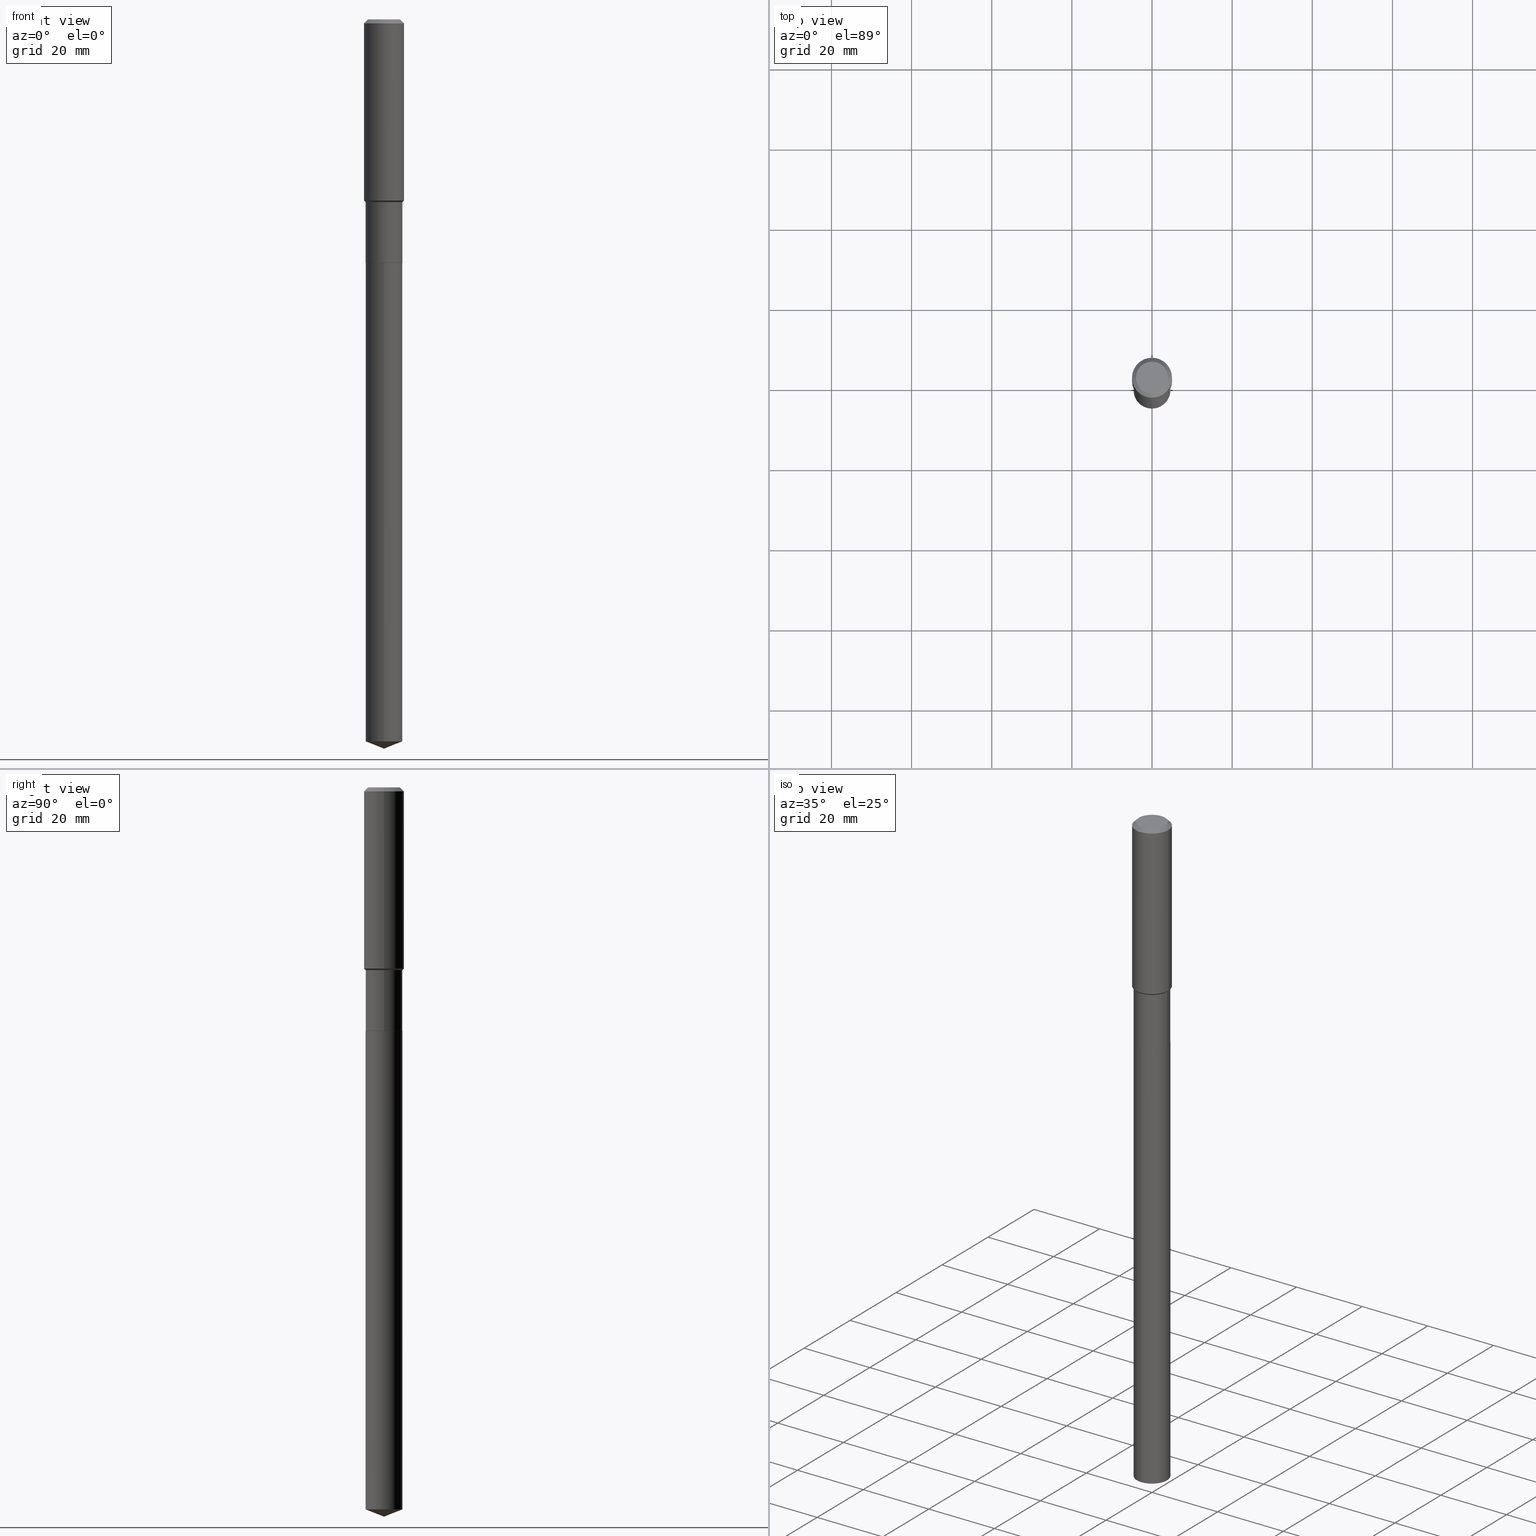
[diagram: canonical four-view strip — front | top / right | iso, engineering-drawing reading convention]
A machine part, canonical four-view strip (front | top / right | iso — engineering-drawing reading convention). The complete STEP part file that produces these views, byte-faithful:
ISO-10303-21;
HEADER;
FILE_DESCRIPTION (( 'STEP AP203' ),
    '1' );
FILE_NAME ('66771.STEP',
    '2024-04-25T05:48:46',
    ( '' ),
    ( '' ),
    'SwSTEP 2.0',
    'SolidWorks 2023',
    '' );
FILE_SCHEMA (( 'CONFIG_CONTROL_DESIGN' ));
ENDSEC;

DATA;
#1 = AXIS2_PLACEMENT_3D ( 'NONE', #376, #455, #132 ) ;
#2 = VECTOR ( 'NONE', #142, 39.37007874015748143 ) ;
#3 = CARTESIAN_POINT ( 'NONE',  ( 5.852740493842886535E-29, -8.356162288253299515E-15, -2.393299999999999983 ) ) ;
#4 = AXIS2_PLACEMENT_3D ( 'NONE', #304, #348, #382 ) ;
#5 = APPROVAL ( #57, 'UNSPECIFIED' ) ;
#6 = FACE_OUTER_BOUND ( 'NONE', #138, .T. ) ;
#7 = EDGE_CURVE ( 'NONE', #214, #440, #206, .T. ) ;
#8 = AXIS2_PLACEMENT_3D ( 'NONE', #488, #64, #107 ) ;
#9 = DIRECTION ( 'NONE',  ( 0.7071067811865452413, -7.319954787623248157E-15, -0.7071067811865497932 ) ) ;
#10 = CARTESIAN_POINT ( 'NONE',  ( 0.000000000000000000, 0.000000000000000000, 0.000000000000000000 ) ) ;
#11 = DIRECTION ( 'NONE',  ( -2.445468806185136597E-29, 3.491481338843145583E-15, 1.000000000000000000 ) ) ;
#12 = FACE_OUTER_BOUND ( 'NONE', #354, .T. ) ;
#13 = DIRECTION ( 'NONE',  ( 1.000000000000000000, -6.982962677686263555E-15, 0.000000000000000000 ) ) ;
#14 = APPLICATION_PROTOCOL_DEFINITION ( 'international standard', 'config_control_design', 1994, #91 ) ;
#15 = ORIENTED_EDGE ( 'NONE', *, *, #28, .F. ) ;
#16 = DIRECTION ( 'NONE',  ( -2.445468806185136597E-29, 3.491481338843145583E-15, 1.000000000000000000 ) ) ;
#17 = FACE_OUTER_BOUND ( 'NONE', #364, .T. ) ;
#18 = EDGE_CURVE ( 'NONE', #362, #395, #146, .T. ) ;
#19 = PERSON_AND_ORGANIZATION ( #124, #361 ) ;
#20 = CIRCLE ( 'NONE', #61, 0.1810999999999999555 ) ;
#21 = DIMENSIONAL_EXPONENTS ( 1.000000000000000000, 0.000000000000000000, 0.000000000000000000, 0.000000000000000000, 0.000000000000000000, 0.000000000000000000, 0.000000000000000000 ) ;
#22 = DIRECTION ( 'NONE',  ( -2.445468806185136597E-29, 3.491481338843145583E-15, 1.000000000000000000 ) ) ;
#23 = EDGE_CURVE ( 'NONE', #109, #310, #153, .T. ) ;
#24 = EDGE_LOOP ( 'NONE', ( #36, #221, #144, #326 ) ) ;
#25 = DIRECTION ( 'NONE',  ( -2.445468806185136877E-29, 3.491481338843145188E-15, 1.000000000000000000 ) ) ;
#26 = ORIENTED_EDGE ( 'NONE', *, *, #431, .F. ) ;
#27 = DIRECTION ( 'NONE',  ( -6.982962677686266711E-15, -1.000000000000000000, 3.016949744521549444E-15 ) ) ;
#28 = EDGE_CURVE ( 'NONE', #186, #215, #75, .T. ) ;
#29 = ORIENTED_EDGE ( 'NONE', *, *, #353, .T. ) ;
#30 = EDGE_LOOP ( 'NONE', ( #302, #71, #473, #15 ) ) ;
#31 = CONICAL_SURFACE ( 'NONE', #300, 0.1806000000000000105, 0.7853981633975507526 ) ;
#32 = CARTESIAN_POINT ( 'NONE',  ( 9.627810689950948900E-31, -1.374596203102555561E-16, -0.03937000000000026589 ) ) ;
#33 = DIRECTION ( 'NONE',  ( -2.445468806185136597E-29, 3.491481338843145583E-15, 1.000000000000000000 ) ) ;
#34 = EDGE_LOOP ( 'NONE', ( #340, #72, #121, #220 ) ) ;
#35 = CARTESIAN_POINT ( 'NONE',  ( 4.352812201569232607E-29, -6.214662209073854707E-15, -1.779949999999999477 ) ) ;
#36 = ORIENTED_EDGE ( 'NONE', *, *, #76, .F. ) ;
#37 = DIRECTION ( 'NONE',  ( 1.000000000000000000, -6.982962677686268288E-15, 0.000000000000000000 ) ) ;
#38 = ORIENTED_EDGE ( 'NONE', *, *, #328, .F. ) ;
#39 = CC_DESIGN_DATE_AND_TIME_ASSIGNMENT ( #232, #55, ( #210 ) ) ;
#40 = APPROVAL_PERSON_ORGANIZATION ( #203, #258, #309 ) ;
#41 = VECTOR ( 'NONE', #359, 39.37007874015748854 ) ;
#42 = CARTESIAN_POINT ( 'NONE',  ( -0.1806000000000000105, -7.070272880296448290E-15, -2.393299999999999983 ) ) ;
#43 = EDGE_CURVE ( 'NONE', #189, #215, #411, .T. ) ;
#44 = FACE_OUTER_BOUND ( 'NONE', #252, .T. ) ;
#45 =( LENGTH_UNIT ( ) NAMED_UNIT ( * ) SI_UNIT ( $, .METRE. ) );
#46 = AXIS2_PLACEMENT_3D ( 'NONE', #190, #409, #332 ) ;
#47 = CYLINDRICAL_SURFACE ( 'NONE', #119, 0.1968500000000001082 ) ;
#48 = LINE ( 'NONE', #337, #51 ) ;
#49 = CARTESIAN_POINT ( 'NONE',  ( 1.752172379876765802E-28, -2.501655154778385733E-14, -7.165000000000000036 ) ) ;
#50 = CC_DESIGN_DATE_AND_TIME_ASSIGNMENT ( #211, #54, ( #261 ) ) ;
#51 = VECTOR ( 'NONE', #9, 39.37007874015748143 ) ;
#52 = CLOSED_SHELL ( 'NONE', ( #377, #303, #331, #305, #218, #116, #93, #470, #122, #169, #335, #380 ) ) ;
#53 = AXIS2_PLACEMENT_3D ( 'NONE', #157, #327, #253 ) ;
#54 = DATE_TIME_ROLE ( 'classification_date' ) ;
#55 = DATE_TIME_ROLE ( 'creation_date' ) ;
#56 = EDGE_CURVE ( 'NONE', #100, #310, #325, .T. ) ;
#57 = APPROVAL_STATUS ( 'not_yet_approved' ) ;
#58 = FACE_OUTER_BOUND ( 'NONE', #228, .T. ) ;
#59 = ORIENTED_EDGE ( 'NONE', *, *, #118, .T. ) ;
#60 = FACE_OUTER_BOUND ( 'NONE', #66, .T. ) ;
#61 = AXIS2_PLACEMENT_3D ( 'NONE', #70, #251, #37 ) ;
#62 = COORDINATED_UNIVERSAL_TIME_OFFSET ( 5, 0, .BEHIND. ) ;
#63 = VECTOR ( 'NONE', #137, 39.37007874015748143 ) ;
#64 = DIRECTION ( 'NONE',  ( -2.445468806185136597E-29, 3.491481338843145583E-15, 1.000000000000000000 ) ) ;
#65 = CARTESIAN_POINT ( 'NONE',  ( 0.1810999999999999832, -1.264614540928982742E-15, 8.830756140966438813E-30 ) ) ;
#66 = EDGE_LOOP ( 'NONE', ( #400, #115, #38, #307 ) ) ;
#67 = PERSON_AND_ORGANIZATION_ROLE ( 'classification_officer' ) ;
#68 = FACE_OUTER_BOUND ( 'NONE', #30, .T. ) ;
#69 = CARTESIAN_POINT ( 'NONE',  ( 0.1810999999999999555, -7.534267581089617769E-15, -1.795699999999999630 ) ) ;
#70 = CARTESIAN_POINT ( 'NONE',  ( 4.391328335266648566E-29, -6.269653040160634830E-15, -1.795699999999999630 ) ) ;
#71 = ORIENTED_EDGE ( 'NONE', *, *, #187, .T. ) ;
#72 = ORIENTED_EDGE ( 'NONE', *, *, #237, .T. ) ;
#73 = APPROVAL_PERSON_ORGANIZATION ( #437, #5, #306 ) ;
#74 = CONICAL_SURFACE ( 'NONE', #147, 99.94676754584145328, 1.195550537616124620 ) ;
#75 = LINE ( 'NONE', #69, #2 ) ;
#76 = EDGE_CURVE ( 'NONE', #356, #355, #267, .T. ) ;
#77 = DIRECTION ( 'NONE',  ( 1.000000000000000000, -6.982962677686263555E-15, 0.000000000000000000 ) ) ;
#78 = EDGE_LOOP ( 'NONE', ( #393, #112, #129 ) ) ;
#79 = DIRECTION ( 'NONE',  ( -6.982962677686266711E-15, -1.000000000000000000, 3.016949744521549444E-15 ) ) ;
#80 = CLOSED_SHELL ( 'NONE', ( #270, #135, #414, #401, #90 ) ) ;
#81 = DIRECTION ( 'NONE',  ( -2.445468806185136877E-29, 3.491481338843145188E-15, 1.000000000000000000 ) ) ;
#82 = AXIS2_PLACEMENT_3D ( 'NONE', #128, #33, #448 ) ;
#83 =( CONVERSION_BASED_UNIT ( 'INCH', #453 ) LENGTH_UNIT ( ) NAMED_UNIT ( #21 ) );
#84 = DIRECTION ( 'NONE',  ( -2.445443041397914078E-29, 3.491518235484888646E-15, 1.000000000000000000 ) ) ;
#85 = CARTESIAN_POINT ( 'NONE',  ( 4.391328335266648566E-29, -6.269653040160634830E-15, -1.795699999999999630 ) ) ;
#86 = DIRECTION ( 'NONE',  ( -2.445468806185136597E-29, 3.491481338843145583E-15, 1.000000000000000000 ) ) ;
#87 = CIRCLE ( 'NONE', #230, 0.1968500000000000250 ) ;
#88 = EDGE_CURVE ( 'NONE', #432, #360, #386, .T. ) ;
#89 = CIRCLE ( 'NONE', #350, 0.1811000000000000110 ) ;
#90 = ADVANCED_FACE ( 'NONE', ( #477 ), #443, .F. ) ;
#91 = APPLICATION_CONTEXT ( 'configuration controlled 3d designs of mechanical parts and assemblies' ) ;
#92 = CARTESIAN_POINT ( 'NONE',  ( -0.1806000000000000105, -7.072922107470559491E-15, -2.393299999999999983 ) ) ;
#93 = ADVANCED_FACE ( 'NONE', ( #212 ), #445, .T. ) ;
#94 = DIRECTION ( 'NONE',  ( 1.000000000000000000, 0.000000000000000000, 0.000000000000000000 ) ) ;
#95 =( GEOMETRIC_REPRESENTATION_CONTEXT ( 3 ) GLOBAL_UNCERTAINTY_ASSIGNED_CONTEXT ( ( #174 ) ) GLOBAL_UNIT_ASSIGNED_CONTEXT ( ( #83, #472, #460 ) ) REPRESENTATION_CONTEXT ( 'NONE', 'WORKASPACE' ) );
#96 = EDGE_CURVE ( 'NONE', #310, #109, #334, .T. ) ;
#97 = PERSON_AND_ORGANIZATION ( #124, #361 ) ;
#98 = FACE_OUTER_BOUND ( 'NONE', #78, .T. ) ;
#99 = CARTESIAN_POINT ( 'NONE',  ( 5.852740493842886535E-29, -8.356162288253299515E-15, -2.393299999999999983 ) ) ;
#100 = VERTEX_POINT ( 'NONE', #430 ) ;
#101 = APPROVAL_DATE_TIME ( #281, #5 ) ;
#102 = DIRECTION ( 'NONE',  ( 2.445468806185136597E-29, -3.491481338843145583E-15, -1.000000000000000000 ) ) ;
#103 = ORIENTED_EDGE ( 'NONE', *, *, #18, .T. ) ;
#104 = DIRECTION ( 'NONE',  ( 0.7071067811866199593, -2.468850131083015945E-15, 0.7071067811864750752 ) ) ;
#105 = DIRECTION ( 'NONE',  ( 1.000000000000000000, -6.982962677686265922E-15, 4.876176775795935793E-29 ) ) ;
#106 = PERSON_AND_ORGANIZATION_ROLE ( 'creator' ) ;
#107 = DIRECTION ( 'NONE',  ( 1.000000000000000000, -6.982962677686265922E-15, 4.876223630392693006E-29 ) ) ;
#108 = AXIS2_PLACEMENT_3D ( 'NONE', #85, #231, #257 ) ;
#109 = VERTEX_POINT ( 'NONE', #320 ) ;
#110 = AXIS2_PLACEMENT_3D ( 'NONE', #427, #102, #239 ) ;
#111 = PERSON_AND_ORGANIZATION ( #124, #361 ) ;
#112 = ORIENTED_EDGE ( 'NONE', *, *, #56, .T. ) ;
#113 = DIRECTION ( 'NONE',  ( -2.445443041397914078E-29, 3.491518235484888646E-15, 1.000000000000000000 ) ) ;
#114 = DIRECTION ( 'NONE',  ( -2.445443041397914078E-29, 3.491518235484888646E-15, 1.000000000000000000 ) ) ;
#115 = ORIENTED_EDGE ( 'NONE', *, *, #262, .T. ) ;
#116 = ADVANCED_FACE ( 'NONE', ( #151 ), #249, .T. ) ;
#117 = DIRECTION ( 'NONE',  ( 2.445468806185136597E-29, -3.491481338843145583E-15, -1.000000000000000000 ) ) ;
#118 = EDGE_CURVE ( 'NONE', #145, #217, #311, .T. ) ;
#119 = AXIS2_PLACEMENT_3D ( 'NONE', #457, #11, #133 ) ;
#120 = AXIS2_PLACEMENT_3D ( 'NONE', #254, #407, #77 ) ;
#121 = ORIENTED_EDGE ( 'NONE', *, *, #394, .F. ) ;
#122 = ADVANCED_FACE ( 'NONE', ( #438 ), #160, .T. ) ;
#123 = ORIENTED_EDGE ( 'NONE', *, *, #328, .T. ) ;
#124 = PERSON ( 'UNSPECIFIED', 'UNSPECIFIED', 'UNSPECIFIED', ('UNSPECIFIED'), ('UNSPECIFIED'), ('UNSPECIFIED') ) ;
#125 = CARTESIAN_POINT ( 'NONE',  ( -0.1810999999999999555, -4.982860145699094696E-15, -1.795699999999999630 ) ) ;
#126 = CARTESIAN_POINT ( 'NONE',  ( -1.264614540928809784E-15, -0.1811000000000247967, -7.093662812866134537 ) ) ;
#127 = FACE_OUTER_BOUND ( 'NONE', #34, .T. ) ;
#128 = CARTESIAN_POINT ( 'NONE',  ( 4.391328335266648566E-29, -6.269653040160634830E-15, -1.795699999999999630 ) ) ;
#129 = ORIENTED_EDGE ( 'NONE', *, *, #23, .F. ) ;
#130 = AXIS2_PLACEMENT_3D ( 'NONE', #161, #381, #94 ) ;
#131 = VECTOR ( 'NONE', #487, 39.37007874015748143 ) ;
#132 = DIRECTION ( 'NONE',  ( 1.000000000000000000, -6.982962677686265922E-15, 0.000000000000000000 ) ) ;
#133 = DIRECTION ( 'NONE',  ( 1.000000000000000000, -6.982962677686266711E-15, 4.876176775795935793E-29 ) ) ;
#134 = EDGE_CURVE ( 'NONE', #186, #287, #20, .T. ) ;
#135 = ADVANCED_FACE ( 'NONE', ( #44 ), #74, .T. ) ;
#136 = DIRECTION ( 'NONE',  ( -6.982962677686269077E-15, -1.000000000000000000, 3.498627837349952552E-15 ) ) ;
#137 = DIRECTION ( 'NONE',  ( -0.7071067811865452413, 2.468850131082233000E-15, -0.7071067811865497932 ) ) ;
#138 = EDGE_LOOP ( 'NONE', ( #163, #475, #29, #280 ) ) ;
#139 = PERSON_AND_ORGANIZATION ( #124, #361 ) ;
#140 = DIRECTION ( 'NONE',  ( 1.000000000000000000, -6.982962677686265922E-15, 0.000000000000000000 ) ) ;
#141 = ORIENTED_EDGE ( 'NONE', *, *, #461, .F. ) ;
#142 = DIRECTION ( 'NONE',  ( 0.7071067811865482389, -2.468850131082264555E-15, 0.7071067811865467956 ) ) ;
#143 = CC_DESIGN_PERSON_AND_ORGANIZATION_ASSIGNMENT ( #97, #67, ( #261 ) ) ;
#144 = ORIENTED_EDGE ( 'NONE', *, *, #394, .T. ) ;
#145 = VERTEX_POINT ( 'NONE', #42 ) ;
#146 = CIRCLE ( 'NONE', #201, 0.1811000000000000110 ) ;
#147 = AXIS2_PLACEMENT_3D ( 'NONE', #156, #84, #225 ) ;
#148 = CARTESIAN_POINT ( 'NONE',  ( 0.000000000000000000, 0.000000000000000000, 0.000000000000000000 ) ) ;
#149 = ORIENTED_EDGE ( 'NONE', *, *, #479, .F. ) ;
#150 = EDGE_CURVE ( 'NONE', #362, #287, #450, .T. ) ;
#151 = FACE_OUTER_BOUND ( 'NONE', #441, .T. ) ;
#152 = DIRECTION ( 'NONE',  ( 2.445443041397913798E-29, -3.491518235484888646E-15, -1.000000000000000000 ) ) ;
#153 = CIRCLE ( 'NONE', #207, 0.1811000000000000110 ) ;
#154 = VECTOR ( 'NONE', #155, 39.37007874015748143 ) ;
#155 = DIRECTION ( 'NONE',  ( -0.7071067811865482389, 7.493145998870357316E-15, 0.7071067811865467956 ) ) ;
#156 = CARTESIAN_POINT ( 'NONE',  ( -7.875562403992475065E-28, 1.124447080012192347E-13, 32.20507874015748229 ) ) ;
#157 = CARTESIAN_POINT ( 'NONE',  ( 5.851517759439794854E-29, -8.354416547583878800E-15, -2.392799999999999816 ) ) ;
#158 = DIRECTION ( 'NONE',  ( -2.445443041397914078E-29, 3.491518235484888646E-15, 1.000000000000000000 ) ) ;
#159 = CONICAL_SURFACE ( 'NONE', #433, 99.94676754584145328, 1.195550537616124620 ) ;
#160 = CONICAL_SURFACE ( 'NONE', #197, 0.1968500000000000250, 0.7853981633974450594 ) ;
#161 = CARTESIAN_POINT ( 'NONE',  ( 0.000000000000000000, 0.000000000000000000, 0.000000000000000000 ) ) ;
#162 = CC_DESIGN_PERSON_AND_ORGANIZATION_ASSIGNMENT ( #111, #347, ( #172 ) ) ;
#163 = ORIENTED_EDGE ( 'NONE', *, *, #237, .F. ) ;
#164 = VECTOR ( 'NONE', #387, 39.37007874015748854 ) ;
#165 = DIRECTION ( 'NONE',  ( -2.445443041397914078E-29, 3.491518235484888646E-15, 1.000000000000000000 ) ) ;
#166 = CALENDAR_DATE ( 2024, 25, 4 ) ;
#167 = CARTESIAN_POINT ( 'NONE',  ( 0.1811000000000000110, -9.619031088512861739E-15, -2.392799999999999816 ) ) ;
#168 = DIRECTION ( 'NONE',  ( -2.445468806185136877E-29, 3.491481338843145188E-15, 1.000000000000000000 ) ) ;
#169 = ADVANCED_FACE ( 'NONE', ( #451 ), #229, .F. ) ;
#170 = DIRECTION ( 'NONE',  ( 1.000000000000000000, -6.982962677686266711E-15, 4.876176775795935793E-29 ) ) ;
#171 = CARTESIAN_POINT ( 'NONE',  ( -7.875562403992475065E-28, 1.124447080012192347E-13, 32.20507874015748229 ) ) ;
#172 = PRODUCT ( '66771', '66771', '', ( #465 ) ) ;
#173 = CARTESIAN_POINT ( 'NONE',  ( 5.852740493842886535E-29, -8.356162288253299515E-15, -2.393299999999999983 ) ) ;
#174 = UNCERTAINTY_MEASURE_WITH_UNIT (LENGTH_MEASURE( 1.000000000000000082E-05 ), #83, 'distance_accuracy_value', 'NONE');
#175 = ORIENTED_EDGE ( 'NONE', *, *, #213, .F. ) ;
#176 = ORIENTED_EDGE ( 'NONE', *, *, #452, .F. ) ;
#177 = CALENDAR_DATE ( 2024, 25, 4 ) ;
#178 = CARTESIAN_POINT ( 'NONE',  ( 1.734721002661190394E-28, -2.476756476277045545E-14, -7.093662812866135425 ) ) ;
#179 = ORIENTED_EDGE ( 'NONE', *, *, #322, .T. ) ;
#180 = DIRECTION ( 'NONE',  ( -6.982962677686266711E-15, -1.000000000000000000, 3.016949744521549444E-15 ) ) ;
#181 = EDGE_CURVE ( 'NONE', #360, #432, #89, .T. ) ;
#182 = AXIS2_PLACEMENT_3D ( 'NONE', #456, #86, #266 ) ;
#183 = CYLINDRICAL_SURFACE ( 'NONE', #321, 0.1968500000000001082 ) ;
#184 = VECTOR ( 'NONE', #104, 39.37007874015748143 ) ;
#185 = DIRECTION ( 'NONE',  ( 1.000000000000000000, -6.982962677686265922E-15, 0.000000000000000000 ) ) ;
#186 = VERTEX_POINT ( 'NONE', #374 ) ;
#187 = EDGE_CURVE ( 'NONE', #287, #189, #369, .T. ) ;
#188 = DIRECTION ( 'NONE',  ( -2.445468806185136597E-29, 3.491481338843145583E-15, 1.000000000000000000 ) ) ;
#189 = VERTEX_POINT ( 'NONE', #296 ) ;
#190 = CARTESIAN_POINT ( 'NONE',  ( -4.713871149261283817E-47, 6.730158695841841775E-33, 1.927594061857935365E-18 ) ) ;
#191 = AXIS2_PLACEMENT_3D ( 'NONE', #35, #188, #185 ) ;
#192 = AXIS2_PLACEMENT_3D ( 'NONE', #148, #444, #170 ) ;
#193 = LINE ( 'NONE', #195, #435 ) ;
#194 = CARTESIAN_POINT ( 'NONE',  ( 5.852740493842886535E-29, -8.356162288253299515E-15, -2.393299999999999983 ) ) ;
#195 = CARTESIAN_POINT ( 'NONE',  ( 1.286792894461599693E-15, 0.1810999999999916565, -2.393300000000000427 ) ) ;
#196 = CC_DESIGN_PERSON_AND_ORGANIZATION_ASSIGNMENT ( #139, #236, ( #210 ) ) ;
#197 = AXIS2_PLACEMENT_3D ( 'NONE', #250, #117, #402 ) ;
#198 = ORIENTED_EDGE ( 'NONE', *, *, #187, .F. ) ;
#199 = DIRECTION ( 'NONE',  ( -0.7071067811866199593, 7.493145998870616062E-15, 0.7071067811864750752 ) ) ;
#200 = LOCAL_TIME ( 1, 48, 46.00000000000000000, #398 ) ;
#201 = AXIS2_PLACEMENT_3D ( 'NONE', #484, #288, #399 ) ;
#202 = AXIS2_PLACEMENT_3D ( 'NONE', #194, #425, #105 ) ;
#203 = PERSON_AND_ORGANIZATION ( #124, #361 ) ;
#204 = APPROVAL_ROLE ( '' ) ;
#205 = DIRECTION ( 'NONE',  ( 1.000000000000000000, -6.982962677686266711E-15, 4.876176775795935793E-29 ) ) ;
#206 = CIRCLE ( 'NONE', #458, 0.1968500000000000250 ) ;
#207 = AXIS2_PLACEMENT_3D ( 'NONE', #223, #490, #290 ) ;
#208 = ORIENTED_EDGE ( 'NONE', *, *, #96, .F. ) ;
#209 = VECTOR ( 'NONE', #81, 39.37007874015748143 ) ;
#210 = PRODUCT_DEFINITION ( 'UNKNOWN', '', #243, #269 ) ;
#211 = DATE_AND_TIME ( #242, #341 ) ;
#212 = FACE_OUTER_BOUND ( 'NONE', #259, .T. ) ;
#213 = EDGE_CURVE ( 'NONE', #109, #360, #193, .T. ) ;
#214 = VERTEX_POINT ( 'NONE', #298 ) ;
#215 = VERTEX_POINT ( 'NONE', #256 ) ;
#216 = CARTESIAN_POINT ( 'NONE',  ( -0.1574800000000000089, 1.168406772637159618E-15, 3.855188123707939751E-18 ) ) ;
#217 = VERTEX_POINT ( 'NONE', #447 ) ;
#218 = ADVANCED_FACE ( 'NONE', ( #17 ), #301, .T. ) ;
#219 = CC_DESIGN_SECURITY_CLASSIFICATION ( #261, ( #243 ) ) ;
#220 = ORIENTED_EDGE ( 'NONE', *, *, #353, .F. ) ;
#221 = ORIENTED_EDGE ( 'NONE', *, *, #461, .T. ) ;
#222 = CARTESIAN_POINT ( 'NONE',  ( 5.852740493842886535E-29, -8.356162288253299515E-15, -2.393299999999999983 ) ) ;
#223 = CARTESIAN_POINT ( 'NONE',  ( 1.734721002661190394E-28, -2.476756476277045545E-14, -7.093662812866135425 ) ) ;
#224 = ORIENTED_EDGE ( 'NONE', *, *, #18, .F. ) ;
#225 = DIRECTION ( 'NONE',  ( -6.982962677686269077E-15, -1.000000000000000000, 3.498627837349952552E-15 ) ) ;
#226 = CIRCLE ( 'NONE', #4, 0.1806000000000000105 ) ;
#227 = CC_DESIGN_PERSON_AND_ORGANIZATION_ASSIGNMENT ( #277, #385, ( #243 ) ) ;
#228 = EDGE_LOOP ( 'NONE', ( #175, #289, #179, #485 ) ) ;
#229 = PLANE ( 'NONE',  #46 ) ;
#230 = AXIS2_PLACEMENT_3D ( 'NONE', #265, #16, #468 ) ;
#231 = DIRECTION ( 'NONE',  ( -2.445468806185136597E-29, 3.491481338843145583E-15, 1.000000000000000000 ) ) ;
#232 = DATE_AND_TIME ( #434, #415 ) ;
#233 = AXIS2_PLACEMENT_3D ( 'NONE', #278, #113, #180 ) ;
#234 = FACE_OUTER_BOUND ( 'NONE', #449, .T. ) ;
#235 = CIRCLE ( 'NONE', #1, 0.1968500000000002192 ) ;
#236 = PERSON_AND_ORGANIZATION_ROLE ( 'creator' ) ;
#237 = EDGE_CURVE ( 'NONE', #189, #214, #275, .T. ) ;
#238 = APPROVAL_DATE_TIME ( #312, #358 ) ;
#239 = DIRECTION ( 'NONE',  ( -1.000000000000000000, 6.982962677686265922E-15, 0.000000000000000000 ) ) ;
#240 = EDGE_CURVE ( 'NONE', #100, #109, #417, .T. ) ;
#241 = LINE ( 'NONE', #351, #131 ) ;
#242 = CALENDAR_DATE ( 2024, 25, 4 ) ;
#243 = PRODUCT_DEFINITION_FORMATION_WITH_SPECIFIED_SOURCE ( 'ANY', '', #172, .NOT_KNOWN. ) ;
#244 = DIRECTION ( 'NONE',  ( -2.445468806185136597E-29, 3.491481338843145583E-15, 1.000000000000000000 ) ) ;
#245 = AXIS2_PLACEMENT_3D ( 'NONE', #99, #165, #466 ) ;
#246 = ORIENTED_EDGE ( 'NONE', *, *, #88, .T. ) ;
#247 = EDGE_CURVE ( 'NONE', #217, #145, #226, .T. ) ;
#248 = SECURITY_CLASSIFICATION_LEVEL ( 'unclassified' ) ;
#249 = CYLINDRICAL_SURFACE ( 'NONE', #192, 0.1810999999999999832 ) ;
#250 = CARTESIAN_POINT ( 'NONE',  ( 9.627810689950948900E-31, -1.374596203102555561E-16, -0.03937000000000026589 ) ) ;
#251 = DIRECTION ( 'NONE',  ( -2.445468806185136597E-29, 3.491481338843145583E-15, 1.000000000000000000 ) ) ;
#252 = EDGE_LOOP ( 'NONE', ( #480, #255, #208 ) ) ;
#253 = DIRECTION ( 'NONE',  ( 1.000000000000000000, -6.982962677686266711E-15, 0.000000000000000000 ) ) ;
#254 = CARTESIAN_POINT ( 'NONE',  ( 5.852740493842886535E-29, -8.356162288253299515E-15, -2.393299999999999983 ) ) ;
#255 = ORIENTED_EDGE ( 'NONE', *, *, #240, .T. ) ;
#256 = CARTESIAN_POINT ( 'NONE',  ( 0.1968500000000002192, -7.589258412176397893E-15, -1.779949999999999477 ) ) ;
#257 = DIRECTION ( 'NONE',  ( 1.000000000000000000, -6.982962677686268288E-15, 0.000000000000000000 ) ) ;
#258 = APPROVAL ( #429, 'UNSPECIFIED' ) ;
#259 = EDGE_LOOP ( 'NONE', ( #198, #365, #324, #481 ) ) ;
#260 = ADVANCED_BREP_SHAPE_REPRESENTATION ( '66771', ( #297, #293, #130 ), #95 ) ;
#261 = SECURITY_CLASSIFICATION ( '', '', #248 ) ;
#262 = EDGE_CURVE ( 'NONE', #145, #362, #308, .T. ) ;
#263 = AXIS2_PLACEMENT_3D ( 'NONE', #10, #463, #378 ) ;
#264 = EDGE_CURVE ( 'NONE', #355, #214, #271, .T. ) ;
#265 = CARTESIAN_POINT ( 'NONE',  ( 9.627810689950948900E-31, -1.374596203102555561E-16, -0.03937000000000026589 ) ) ;
#266 = DIRECTION ( 'NONE',  ( 1.000000000000000000, -6.982962677686265922E-15, 4.876223630392693006E-29 ) ) ;
#267 = CIRCLE ( 'NONE', #8, 0.1574800000000000089 ) ;
#268 = VECTOR ( 'NONE', #199, 39.37007874015748143 ) ;
#269 = DESIGN_CONTEXT ( 'detailed design', #91, 'design' ) ;
#270 = ADVANCED_FACE ( 'NONE', ( #12 ), #388, .T. ) ;
#271 = LINE ( 'NONE', #424, #63 ) ;
#272 = CARTESIAN_POINT ( 'NONE',  ( -0.1968500000000001082, 1.398703375343757985E-15, -9.682923725166787881E-30 ) ) ;
#273 = LINE ( 'NONE', #428, #184 ) ;
#274 = AXIS2_PLACEMENT_3D ( 'NONE', #173, #152, #282 ) ;
#275 = LINE ( 'NONE', #272, #459 ) ;
#276 = ORIENTED_EDGE ( 'NONE', *, *, #150, .F. ) ;
#277 = PERSON_AND_ORGANIZATION ( #124, #361 ) ;
#278 = CARTESIAN_POINT ( 'NONE',  ( 5.852740493842886535E-29, -8.356162288253299515E-15, -2.393299999999999983 ) ) ;
#279 = CARTESIAN_POINT ( 'NONE',  ( -0.1810999999999999555, -6.025241899410715104E-15, -1.795699999999999630 ) ) ;
#280 = ORIENTED_EDGE ( 'NONE', *, *, #7, .F. ) ;
#281 = DATE_AND_TIME ( #177, #370 ) ;
#282 = DIRECTION ( 'NONE',  ( 6.982962677686265922E-15, 1.000000000000000000, -3.491518235484888646E-15 ) ) ;
#283 = ORIENTED_EDGE ( 'NONE', *, *, #150, .T. ) ;
#284 = DIRECTION ( 'NONE',  ( 1.000000000000000000, -6.982962677686263555E-15, 0.000000000000000000 ) ) ;
#285 = DIRECTION ( 'NONE',  ( 1.000000000000000000, -6.982962677686268288E-15, 0.000000000000000000 ) ) ;
#286 = CONICAL_SURFACE ( 'NONE', #82, 0.1810999999999999555, 0.7853981633974492782 ) ;
#287 = VERTEX_POINT ( 'NONE', #279 ) ;
#288 = DIRECTION ( 'NONE',  ( -2.445468806185136597E-29, 3.491481338843145583E-15, 1.000000000000000000 ) ) ;
#289 = ORIENTED_EDGE ( 'NONE', *, *, #23, .T. ) ;
#290 = DIRECTION ( 'NONE',  ( -6.982962677686266711E-15, -1.000000000000000000, 6.033899489043098888E-15 ) ) ;
#291 = ORIENTED_EDGE ( 'NONE', *, *, #134, .F. ) ;
#292 = DIRECTION ( 'NONE',  ( -6.982962677686266711E-15, -1.000000000000000000, 6.033899489043098888E-15 ) ) ;
#293 = MANIFOLD_SOLID_BREP ( 'Body-Move/Copy2[2]', #52 ) ;
#294 = CC_DESIGN_APPROVAL ( #5, ( #210 ) ) ;
#295 = AXIS2_PLACEMENT_3D ( 'NONE', #316, #22, #285 ) ;
#296 = CARTESIAN_POINT ( 'NONE',  ( -0.1968500000000002192, -4.815958833730096919E-15, -1.779949999999999477 ) ) ;
#297 = MANIFOLD_SOLID_BREP ( 'Body-Move/Copy2[1]', #80 ) ;
#298 = CARTESIAN_POINT ( 'NONE',  ( -0.1968500000000000250, -1.777357539348296567E-15, -0.03937000000000026589 ) ) ;
#299 = VECTOR ( 'NONE', #25, 39.37007874015748143 ) ;
#300 = AXIS2_PLACEMENT_3D ( 'NONE', #315, #379, #13 ) ;
#301 = CYLINDRICAL_SURFACE ( 'NONE', #263, 0.1810999999999999832 ) ;
#302 = ORIENTED_EDGE ( 'NONE', *, *, #134, .T. ) ;
#303 = ADVANCED_FACE ( 'NONE', ( #419 ), #483, .T. ) ;
#304 = CARTESIAN_POINT ( 'NONE',  ( 5.852740493842886535E-29, -8.356162288253299515E-15, -2.393299999999999983 ) ) ;
#305 = ADVANCED_FACE ( 'NONE', ( #68 ), #286, .T. ) ;
#306 = APPROVAL_ROLE ( '' ) ;
#307 = ORIENTED_EDGE ( 'NONE', *, *, #375, .F. ) ;
#308 = LINE ( 'NONE', #92, #268 ) ;
#309 = APPROVAL_ROLE ( '' ) ;
#310 = VERTEX_POINT ( 'NONE', #126 ) ;
#311 = CIRCLE ( 'NONE', #120, 0.1806000000000000105 ) ;
#312 = DATE_AND_TIME ( #352, #384 ) ;
#313 = ORIENTED_EDGE ( 'NONE', *, *, #118, .F. ) ;
#314 = LINE ( 'NONE', #65, #299 ) ;
#315 = CARTESIAN_POINT ( 'NONE',  ( 5.852740493842886535E-29, -8.356162288253299515E-15, -2.393299999999999983 ) ) ;
#316 = CARTESIAN_POINT ( 'NONE',  ( 4.391328335266648566E-29, -6.269653040160634830E-15, -1.795699999999999630 ) ) ;
#317 = CARTESIAN_POINT ( 'NONE',  ( -1.264614540928924366E-15, -0.1811000000000083932, -2.393299999999999095 ) ) ;
#318 = ORIENTED_EDGE ( 'NONE', *, *, #479, .T. ) ;
#319 = ORIENTED_EDGE ( 'NONE', *, *, #76, .T. ) ;
#320 = CARTESIAN_POINT ( 'NONE',  ( 1.286792894461715261E-15, 0.1810999999999753363, -7.093662812866136314 ) ) ;
#321 = AXIS2_PLACEMENT_3D ( 'NONE', #486, #396, #205 ) ;
#322 = EDGE_CURVE ( 'NONE', #310, #432, #371, .T. ) ;
#323 = ORIENTED_EDGE ( 'NONE', *, *, #264, .T. ) ;
#324 = ORIENTED_EDGE ( 'NONE', *, *, #28, .T. ) ;
#325 = LINE ( 'NONE', #405, #41 ) ;
#326 = ORIENTED_EDGE ( 'NONE', *, *, #264, .F. ) ;
#327 = DIRECTION ( 'NONE',  ( -2.445468806185136597E-29, 3.491481338843145583E-15, 1.000000000000000000 ) ) ;
#328 = EDGE_CURVE ( 'NONE', #395, #362, #412, .T. ) ;
#329 = DIRECTION ( 'NONE',  ( -2.445443041397914078E-29, 3.491518235484888646E-15, 1.000000000000000000 ) ) ;
#330 = ORIENTED_EDGE ( 'NONE', *, *, #7, .T. ) ;
#331 = ADVANCED_FACE ( 'NONE', ( #127 ), #183, .T. ) ;
#332 = DIRECTION ( 'NONE',  ( -1.000000000000000000, 6.982962677686265922E-15, -4.876176775795935793E-29 ) ) ;
#333 = ORIENTED_EDGE ( 'NONE', *, *, #247, .F. ) ;
#334 = CIRCLE ( 'NONE', #406, 0.1811000000000000110 ) ;
#335 = ADVANCED_FACE ( 'NONE', ( #234 ), #416, .F. ) ;
#336 = CARTESIAN_POINT ( 'NONE',  ( -0.1810999999999999832, 1.286792894461541317E-15, -8.908191448451633036E-30 ) ) ;
#337 = CARTESIAN_POINT ( 'NONE',  ( 0.1968500000000000250, -1.487948651171581601E-15, -0.03937000000000026589 ) ) ;
#338 = CARTESIAN_POINT ( 'NONE',  ( -1.264614540928924366E-15, -0.1811000000000083932, -2.393299999999999095 ) ) ;
#339 = DIRECTION ( 'NONE',  ( -2.445443041397914078E-29, 3.491518235484888646E-15, 1.000000000000000000 ) ) ;
#340 = ORIENTED_EDGE ( 'NONE', *, *, #390, .T. ) ;
#341 = LOCAL_TIME ( 1, 48, 46.00000000000000000, #391 ) ;
#342 = PRODUCT_RELATED_PRODUCT_CATEGORY ( 'detail', '', ( #172 ) ) ;
#343 = EDGE_LOOP ( 'NONE', ( #318, #319 ) ) ;
#344 = FACE_OUTER_BOUND ( 'NONE', #367, .T. ) ;
#345 = CC_DESIGN_APPROVAL ( #358, ( #261 ) ) ;
#346 = APPLICATION_PROTOCOL_DEFINITION ( 'international standard', 'config_control_design', 1994, #476 ) ;
#347 = PERSON_AND_ORGANIZATION_ROLE ( 'design_owner' ) ;
#348 = DIRECTION ( 'NONE',  ( -2.445468806185136597E-29, 3.491481338843145583E-15, 1.000000000000000000 ) ) ;
#349 = AXIS2_PLACEMENT_3D ( 'NONE', #383, #464, #284 ) ;
#350 = AXIS2_PLACEMENT_3D ( 'NONE', #3, #339, #79 ) ;
#351 = CARTESIAN_POINT ( 'NONE',  ( 0.1968500000000001082, -1.374596203102542397E-15, 9.598753983154305062E-30 ) ) ;
#352 = CALENDAR_DATE ( 2024, 25, 4 ) ;
#353 = EDGE_CURVE ( 'NONE', #215, #440, #241, .T. ) ;
#354 = EDGE_LOOP ( 'NONE', ( #413, #373, #446, #436 ) ) ;
#355 = VERTEX_POINT ( 'NONE', #216 ) ;
#356 = VERTEX_POINT ( 'NONE', #442 ) ;
#357 = SHAPE_DEFINITION_REPRESENTATION ( #366, #260 ) ;
#358 = APPROVAL ( #467, 'UNSPECIFIED' ) ;
#359 = DIRECTION ( 'NONE',  ( -6.497071151882132458E-15, -0.9304175679820264611, 0.3665012267242923061 ) ) ;
#360 = VERTEX_POINT ( 'NONE', #489 ) ;
#361 = ORGANIZATION ( 'UNSPECIFIED', 'UNSPECIFIED', '' ) ;
#362 = VERTEX_POINT ( 'NONE', #418 ) ;
#363 = ORIENTED_EDGE ( 'NONE', *, *, #375, .T. ) ;
#364 = EDGE_LOOP ( 'NONE', ( #123, #283, #291, #26 ) ) ;
#365 = ORIENTED_EDGE ( 'NONE', *, *, #452, .T. ) ;
#366 = PRODUCT_DEFINITION_SHAPE ( 'NONE', 'NONE',  #210 ) ;
#367 = EDGE_LOOP ( 'NONE', ( #408, #59, #363, #224 ) ) ;
#368 = DIRECTION ( 'NONE',  ( -2.445443041397914078E-29, 3.491518235484888646E-15, 1.000000000000000000 ) ) ;
#369 = LINE ( 'NONE', #125, #154 ) ;
#370 = LOCAL_TIME ( 1, 48, 46.00000000000000000, #426 ) ;
#371 = LINE ( 'NONE', #338, #372 ) ;
#372 = VECTOR ( 'NONE', #368, 39.37007874015748143 ) ;
#373 = ORIENTED_EDGE ( 'NONE', *, *, #213, .T. ) ;
#374 = CARTESIAN_POINT ( 'NONE',  ( 0.1810999999999999555, -7.534267581089617769E-15, -1.795699999999999630 ) ) ;
#375 = EDGE_CURVE ( 'NONE', #217, #395, #273, .T. ) ;
#376 = CARTESIAN_POINT ( 'NONE',  ( 4.352812201569232607E-29, -6.214662209073854707E-15, -1.779949999999999477 ) ) ;
#377 = ADVANCED_FACE ( 'NONE', ( #60 ), #31, .T. ) ;
#378 = DIRECTION ( 'NONE',  ( 1.000000000000000000, -6.982962677686266711E-15, 4.876176775795935793E-29 ) ) ;
#379 = DIRECTION ( 'NONE',  ( -2.445468806185136597E-29, 3.491481338843145583E-15, 1.000000000000000000 ) ) ;
#380 = ADVANCED_FACE ( 'NONE', ( #344 ), #422, .T. ) ;
#381 = DIRECTION ( 'NONE',  ( 0.000000000000000000, 0.000000000000000000, 1.000000000000000000 ) ) ;
#382 = DIRECTION ( 'NONE',  ( 1.000000000000000000, -6.982962677686263555E-15, 0.000000000000000000 ) ) ;
#383 = CARTESIAN_POINT ( 'NONE',  ( 5.852740493842886535E-29, -8.356162288253299515E-15, -2.393299999999999983 ) ) ;
#384 = LOCAL_TIME ( 1, 48, 46.00000000000000000, #474 ) ;
#385 = PERSON_AND_ORGANIZATION_ROLE ( 'design_supplier' ) ;
#386 = CIRCLE ( 'NONE', #392, 0.1811000000000000110 ) ;
#387 = DIRECTION ( 'NONE',  ( 6.611014441532080000E-15, 0.9304175679820290146, 0.3665012267242857003 ) ) ;
#388 = CYLINDRICAL_SURFACE ( 'NONE', #245, 0.1811000000000000110 ) ;
#389 = ORIENTED_EDGE ( 'NONE', *, *, #181, .T. ) ;
#390 = EDGE_CURVE ( 'NONE', #215, #189, #235, .T. ) ;
#391 = COORDINATED_UNIVERSAL_TIME_OFFSET ( 5, 0, .BEHIND. ) ;
#392 = AXIS2_PLACEMENT_3D ( 'NONE', #222, #329, #27 ) ;
#393 = ORIENTED_EDGE ( 'NONE', *, *, #240, .F. ) ;
#394 = EDGE_CURVE ( 'NONE', #440, #214, #87, .T. ) ;
#395 = VERTEX_POINT ( 'NONE', #167 ) ;
#396 = DIRECTION ( 'NONE',  ( -2.445468806185136597E-29, 3.491481338843145583E-15, 1.000000000000000000 ) ) ;
#397 = CC_DESIGN_PERSON_AND_ORGANIZATION_ASSIGNMENT ( #19, #106, ( #243 ) ) ;
#398 = COORDINATED_UNIVERSAL_TIME_OFFSET ( 5, 0, .BEHIND. ) ;
#399 = DIRECTION ( 'NONE',  ( 1.000000000000000000, -6.982962677686266711E-15, 0.000000000000000000 ) ) ;
#400 = ORIENTED_EDGE ( 'NONE', *, *, #247, .T. ) ;
#401 = ADVANCED_FACE ( 'NONE', ( #58 ), #423, .T. ) ;
#402 = DIRECTION ( 'NONE',  ( -1.000000000000000000, 6.982962677686265922E-15, 0.000000000000000000 ) ) ;
#403 = EDGE_LOOP ( 'NONE', ( #246, #389 ) ) ;
#404 = CIRCLE ( 'NONE', #182, 0.1574800000000000089 ) ;
#405 = CARTESIAN_POINT ( 'NONE',  ( 1.752159939161605607E-28, -2.501672815724922870E-14, -7.165000000000000036 ) ) ;
#406 = AXIS2_PLACEMENT_3D ( 'NONE', #178, #114, #292 ) ;
#407 = DIRECTION ( 'NONE',  ( -2.445468806185136597E-29, 3.491481338843145583E-15, 1.000000000000000000 ) ) ;
#408 = ORIENTED_EDGE ( 'NONE', *, *, #262, .F. ) ;
#409 = DIRECTION ( 'NONE',  ( 2.438088387897960049E-29, -3.491481338843145188E-15, -1.000000000000000000 ) ) ;
#410 = CIRCLE ( 'NONE', #108, 0.1810999999999999555 ) ;
#411 = CIRCLE ( 'NONE', #191, 0.1968500000000002192 ) ;
#412 = CIRCLE ( 'NONE', #53, 0.1811000000000000110 ) ;
#413 = ORIENTED_EDGE ( 'NONE', *, *, #96, .T. ) ;
#414 = ADVANCED_FACE ( 'NONE', ( #98 ), #159, .T. ) ;
#415 = LOCAL_TIME ( 1, 48, 46.00000000000000000, #62 ) ;
#416 = PLANE ( 'NONE',  #202 ) ;
#417 = LINE ( 'NONE', #49, #164 ) ;
#418 = CARTESIAN_POINT ( 'NONE',  ( -0.1811000000000000110, -6.025241899410715104E-15, -2.392799999999999816 ) ) ;
#419 = FACE_OUTER_BOUND ( 'NONE', #24, .T. ) ;
#420 = APPROVAL_PERSON_ORGANIZATION ( #482, #358, #204 ) ;
#421 = DATE_AND_TIME ( #166, #200 ) ;
#422 = CONICAL_SURFACE ( 'NONE', #349, 0.1806000000000000105, 0.7853981633975507526 ) ;
#423 = CYLINDRICAL_SURFACE ( 'NONE', #233, 0.1811000000000000110 ) ;
#424 = CARTESIAN_POINT ( 'NONE',  ( -0.1968500000000000250, 1.237136582792286225E-15, -0.03937000000000026589 ) ) ;
#425 = DIRECTION ( 'NONE',  ( -2.438088387897960049E-29, 3.491481338843145188E-15, 1.000000000000000000 ) ) ;
#426 = COORDINATED_UNIVERSAL_TIME_OFFSET ( 5, 0, .BEHIND. ) ;
#427 = CARTESIAN_POINT ( 'NONE',  ( 9.627810689950948900E-31, -1.374596203102555561E-16, -0.03937000000000026589 ) ) ;
#428 = CARTESIAN_POINT ( 'NONE',  ( 0.1806000000000000105, -9.617285347843439447E-15, -2.393299999999999983 ) ) ;
#429 = APPROVAL_STATUS ( 'not_yet_approved' ) ;
#430 = CARTESIAN_POINT ( 'NONE',  ( 1.752159939161605383E-28, -2.501672815724922554E-14, -7.165000000000000036 ) ) ;
#431 = EDGE_CURVE ( 'NONE', #395, #186, #314, .T. ) ;
#432 = VERTEX_POINT ( 'NONE', #317 ) ;
#433 = AXIS2_PLACEMENT_3D ( 'NONE', #171, #439, #136 ) ;
#434 = CALENDAR_DATE ( 2024, 25, 4 ) ;
#435 = VECTOR ( 'NONE', #158, 39.37007874015748143 ) ;
#436 = ORIENTED_EDGE ( 'NONE', *, *, #322, .F. ) ;
#437 = PERSON_AND_ORGANIZATION ( #124, #361 ) ;
#438 = FACE_OUTER_BOUND ( 'NONE', #454, .T. ) ;
#439 = DIRECTION ( 'NONE',  ( -2.445443041397914078E-29, 3.491518235484888646E-15, 1.000000000000000000 ) ) ;
#440 = VERTEX_POINT ( 'NONE', #478 ) ;
#441 = EDGE_LOOP ( 'NONE', ( #276, #103, #462, #176 ) ) ;
#442 = CARTESIAN_POINT ( 'NONE',  ( 0.1574800000000000089, -1.284169937930321189E-15, 3.855188123724205385E-18 ) ) ;
#443 = PLANE ( 'NONE',  #274 ) ;
#444 = DIRECTION ( 'NONE',  ( -2.445468806185136597E-29, 3.491481338843145583E-15, 1.000000000000000000 ) ) ;
#445 = CONICAL_SURFACE ( 'NONE', #295, 0.1810999999999999555, 0.7853981633974492782 ) ;
#446 = ORIENTED_EDGE ( 'NONE', *, *, #88, .F. ) ;
#447 = CARTESIAN_POINT ( 'NONE',  ( 0.1806000000000000105, -9.617285347843439447E-15, -2.393299999999999983 ) ) ;
#448 = DIRECTION ( 'NONE',  ( 1.000000000000000000, -6.982962677686268288E-15, 0.000000000000000000 ) ) ;
#449 = EDGE_LOOP ( 'NONE', ( #333, #313 ) ) ;
#450 = LINE ( 'NONE', #336, #209 ) ;
#451 = FACE_OUTER_BOUND ( 'NONE', #343, .T. ) ;
#452 = EDGE_CURVE ( 'NONE', #287, #186, #410, .T. ) ;
#453 = LENGTH_MEASURE_WITH_UNIT ( LENGTH_MEASURE( 0.02539999999999999897 ), #45 );
#454 = EDGE_LOOP ( 'NONE', ( #141, #149, #323, #330 ) ) ;
#455 = DIRECTION ( 'NONE',  ( -2.445468806185136597E-29, 3.491481338843145583E-15, 1.000000000000000000 ) ) ;
#456 = CARTESIAN_POINT ( 'NONE',  ( -9.427742298522567634E-47, 1.346031739168368355E-32, 3.855188123715870730E-18 ) ) ;
#457 = CARTESIAN_POINT ( 'NONE',  ( 0.000000000000000000, 0.000000000000000000, 0.000000000000000000 ) ) ;
#458 = AXIS2_PLACEMENT_3D ( 'NONE', #32, #244, #140 ) ;
#459 = VECTOR ( 'NONE', #168, 39.37007874015748143 ) ;
#460 =( NAMED_UNIT ( * ) SI_UNIT ( $, .STERADIAN. ) SOLID_ANGLE_UNIT ( ) );
#461 = EDGE_CURVE ( 'NONE', #356, #440, #48, .T. ) ;
#462 = ORIENTED_EDGE ( 'NONE', *, *, #431, .T. ) ;
#463 = DIRECTION ( 'NONE',  ( -2.445468806185136597E-29, 3.491481338843145583E-15, 1.000000000000000000 ) ) ;
#464 = DIRECTION ( 'NONE',  ( -2.445468806185136597E-29, 3.491481338843145583E-15, 1.000000000000000000 ) ) ;
#465 = MECHANICAL_CONTEXT ( 'NONE', #476, 'mechanical' ) ;
#466 = DIRECTION ( 'NONE',  ( -6.982962677686266711E-15, -1.000000000000000000, 3.016949744521549444E-15 ) ) ;
#467 = APPROVAL_STATUS ( 'not_yet_approved' ) ;
#468 = DIRECTION ( 'NONE',  ( 1.000000000000000000, -6.982962677686265922E-15, 0.000000000000000000 ) ) ;
#469 = CC_DESIGN_APPROVAL ( #258, ( #243 ) ) ;
#470 = ADVANCED_FACE ( 'NONE', ( #6 ), #47, .T. ) ;
#471 = APPROVAL_DATE_TIME ( #421, #258 ) ;
#472 =( NAMED_UNIT ( * ) PLANE_ANGLE_UNIT ( ) SI_UNIT ( $, .RADIAN. ) );
#473 = ORIENTED_EDGE ( 'NONE', *, *, #390, .F. ) ;
#474 = COORDINATED_UNIVERSAL_TIME_OFFSET ( 5, 0, .BEHIND. ) ;
#475 = ORIENTED_EDGE ( 'NONE', *, *, #43, .T. ) ;
#476 = APPLICATION_CONTEXT ( 'configuration controlled 3d designs of mechanical parts and assemblies' ) ;
#477 = FACE_OUTER_BOUND ( 'NONE', #403, .T. ) ;
#478 = CARTESIAN_POINT ( 'NONE',  ( 0.1968500000000000250, -1.512055823412797189E-15, -0.03937000000000026589 ) ) ;
#479 = EDGE_CURVE ( 'NONE', #355, #356, #404, .T. ) ;
#480 = ORIENTED_EDGE ( 'NONE', *, *, #56, .F. ) ;
#481 = ORIENTED_EDGE ( 'NONE', *, *, #43, .F. ) ;
#482 = PERSON_AND_ORGANIZATION ( #124, #361 ) ;
#483 = CONICAL_SURFACE ( 'NONE', #110, 0.1968500000000000250, 0.7853981633974450594 ) ;
#484 = CARTESIAN_POINT ( 'NONE',  ( 5.851517759439794854E-29, -8.354416547583878800E-15, -2.392799999999999816 ) ) ;
#485 = ORIENTED_EDGE ( 'NONE', *, *, #181, .F. ) ;
#486 = CARTESIAN_POINT ( 'NONE',  ( 0.000000000000000000, 0.000000000000000000, 0.000000000000000000 ) ) ;
#487 = DIRECTION ( 'NONE',  ( -2.445468806185136877E-29, 3.491481338843145188E-15, 1.000000000000000000 ) ) ;
#488 = CARTESIAN_POINT ( 'NONE',  ( -9.427742298522567634E-47, 1.346031739168368355E-32, 3.855188123715870730E-18 ) ) ;
#489 = CARTESIAN_POINT ( 'NONE',  ( 1.286792894461715458E-15, 0.1810999999999916565, -2.393300000000000427 ) ) ;
#490 = DIRECTION ( 'NONE',  ( -2.445443041397914078E-29, 3.491518235484888646E-15, 1.000000000000000000 ) ) ;
ENDSEC;
END-ISO-10303-21;
